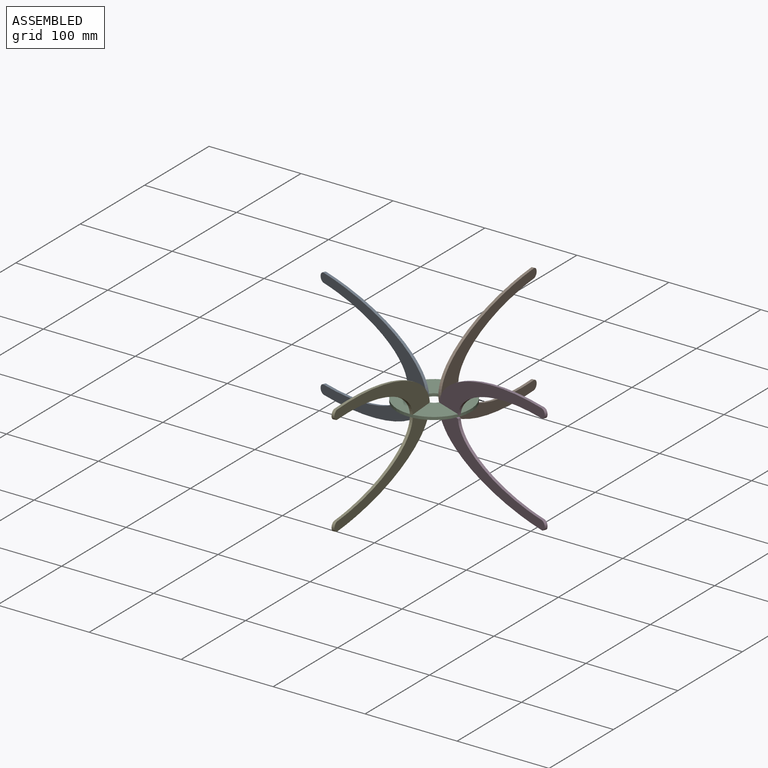
[diagram: assembled view]
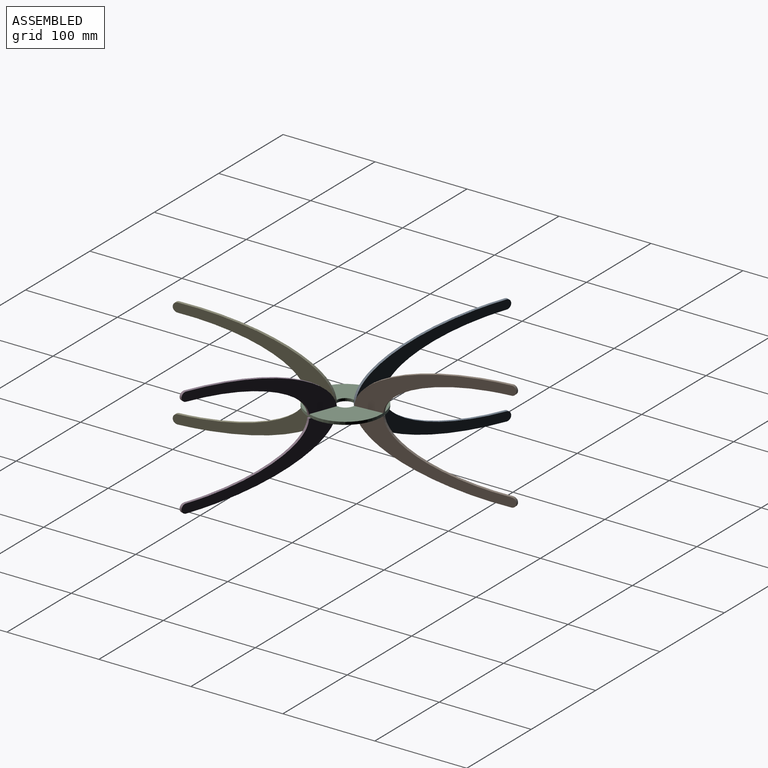
[diagram: assembled view, second angle]
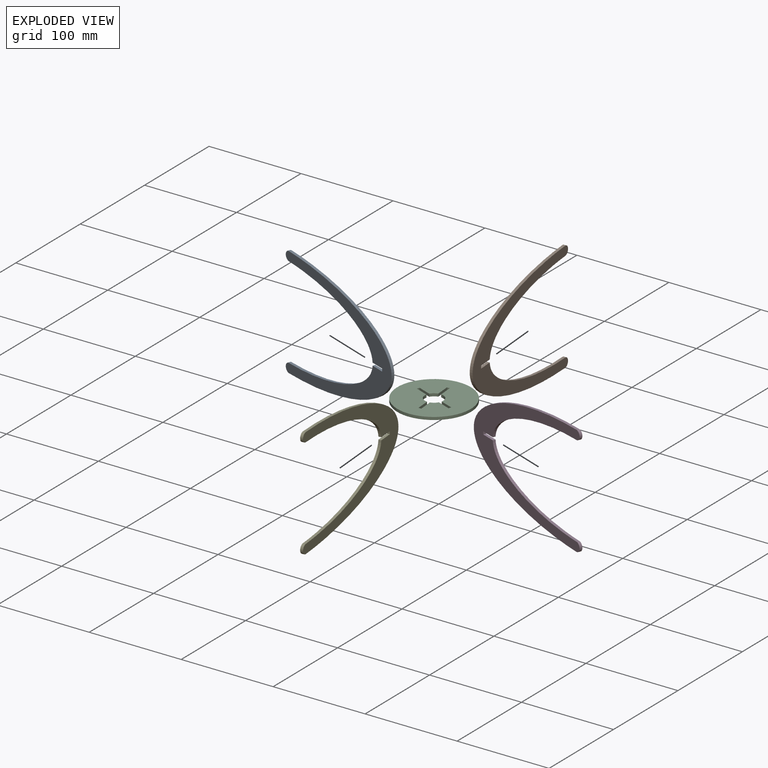
[diagram: exploded view]
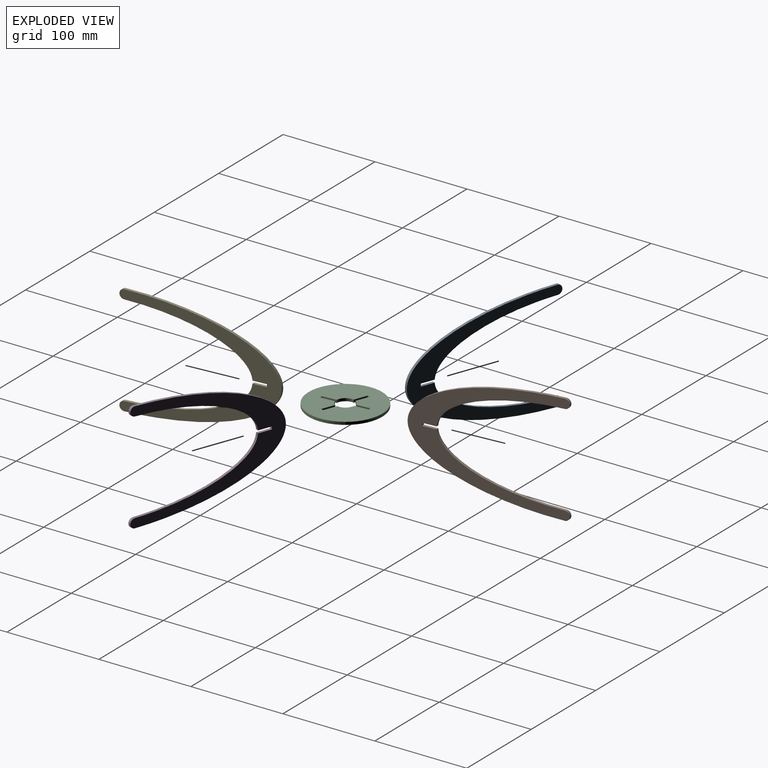
[diagram: exploded view, second angle]
ASSEMBLY  parts=5 mates=4
PART A: 14 faces, bbox 143.2x92.2x119.9 mm
  f0: extruded ~138.89x119.95mm, area 1102.8mm2, adj f1,f11,f12,f13
  f1: cylinder r=5mm len=5.88mm, axis (0.54,0.84,0), area 23.7mm2, adj f0,f2,f12,f13
  f2: plane 2.53x1.61mm, normal (-0.84,0.54,0), area 0mm2, adj f1,f3,f12,f13
  f3: cylinder r=5mm len=5.77mm, axis (0.54,0.84,0), area 23.4mm2, adj f2,f4,f12,f13
  f4: extruded ~113.59x73.46mm, area 447mm2, adj f3,f5,f12,f13
  f5: plane 14.33x10.59mm, normal (0,0,-1), area 45.2mm2, adj f4,f6,f12,f13
  f6: plane 3x2.53mm, normal (-0.84,0.54,0), area 9mm2, adj f5,f7,f12,f13
  f7: plane 14.33x10.59mm, normal (0,0,1), area 45.2mm2, adj f6,f8,f12,f13
  f8: extruded ~113.59x73.46mm, area 447mm2, adj f7,f9,f12,f13
  f9: cylinder r=5mm len=5.77mm, axis (0.54,0.84,0), area 23.4mm2, adj f8,f10,f12,f13
  f10: plane 2.53x1.61mm, normal (-0.84,0.54,0), area 0mm2, adj f9,f11,f12,f13
  f11: cylinder r=5mm len=5.88mm, axis (0.54,0.84,0), area 23.7mm2, adj f0,f10,f12,f13
  f12: plane 141.55x119.95mm, normal (-0.54,-0.84,0), area 4921.6mm2, adj f0,f1,f2,f3,f4,f5,f6,f7
  f13: plane 141.55x119.95mm, normal (0.54,0.84,0), area 4921.6mm2, adj f0,f1,f2,f3,f4,f5,f6,f7
PART B: same geometry as A
PART C: 19 faces, bbox 80x80x3 mm
  f0: plane 3x2.53mm, normal (0.84,-0.54,0), area 9mm2, adj f1,f16,f17,f18
  f1: plane 12.77x8.09mm, normal (-0.54,-0.84,0), area 45.3mm2, adj f0,f2,f17,f18
  f2: cylinder r=10mm len=15.1mm, axis (0,0,-1), area 51.3mm2, adj f1,f3,f17,f18
  f3: plane 12.77x8.09mm, normal (0.54,-0.84,0), area 45.3mm2, adj f2,f4,f17,f18
  f4: plane 3x2.53mm, normal (-0.84,-0.54,0), area 9mm2, adj f3,f5,f17,f18
  f5: plane 12.77x8.09mm, normal (-0.54,0.84,0), area 45.3mm2, adj f4,f6,f17,f18
  f6: cylinder r=10mm len=8.05mm, axis (0,0,-1), area 24.8mm2, adj f5,f7,f17,f18
  f7: plane 12.77x8.09mm, normal (-0.54,-0.84,0), area 45.3mm2, adj f6,f8,f17,f18
  f8: plane 3x2.53mm, normal (-0.84,0.54,0), area 9mm2, adj f7,f9,f17,f18
  f9: plane 12.77x8.09mm, normal (0.54,0.84,0), area 45.3mm2, adj f8,f10,f17,f18
  f10: cylinder r=10mm len=15.1mm, axis (0,0,-1), area 51.3mm2, adj f9,f11,f17,f18
  f11: plane 12.77x8.09mm, normal (-0.54,0.84,0), area 45.3mm2, adj f10,f12,f17,f18
  f12: plane 3x2.53mm, normal (0.84,0.54,0), area 9mm2, adj f11,f13,f17,f18
  f13: plane 12.77x8.09mm, normal (0.54,-0.84,0), area 45.3mm2, adj f12,f14,f17,f18
  f14: cylinder r=10mm len=8.05mm, axis (0,0,-1), area 24.8mm2, adj f13,f16,f17,f18
  f15: cylinder r=40mm len=80mm, axis (0,0,-1), area 754mm2, adj f17,f18
  f16: plane 12.77x8.09mm, normal (0.54,0.84,0), area 45.3mm2, adj f0,f14,f17,f18
  f17: plane 80x80mm, normal (0,0,1), area 4531.9mm2, adj f0,f1,f2,f3,f4,f5,f6,f7
  f18: plane 80x80mm, normal (0,0,-1), area 4531.9mm2, adj f0,f1,f2,f3,f4,f5,f6,f7
PART D: same geometry as A
PART E: same geometry as A
PLACE A rot(axis=(0,0,1),11.6deg) t=(-44.76,56.63,-22.13)mm
PLACE B rot(axis=(0,0,-1),53.1deg) t=(-44.76,56.63,-20.63)mm
PLACE C rot(axis=(0,0,-1),53.1deg) t=(-44.76,56.63,-20.63)mm
PLACE D rot(axis=(-0.45,-0.89,0),180deg) t=(-44.76,56.63,-22.13)mm
PLACE E rot(axis=(0.86,0.52,0),180deg) t=(-44.76,56.63,-20.63)mm
MATE fastened C.f12 <-> A.f6  axis (0.93,-0.35,0) through (-68.14,65.5,-22.13)mm
MATE fastened E.f6 <-> C.f8  axis (0.08,-1,0) through (-42.79,31.71,-20.63)mm
MATE fastened D.f6 <-> C.f4  axis (0.93,-0.35,0) through (-21.39,47.76,-22.13)mm
MATE fastened B.f6 <-> C.f0  axis (-0.08,1,0) through (-46.74,81.55,-20.63)mm
